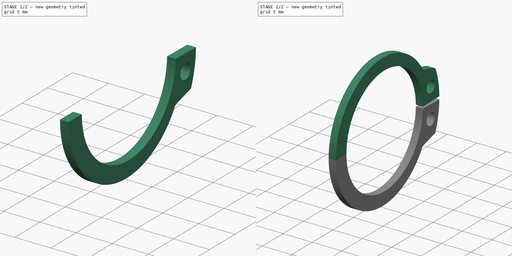
[diagram: build sequence overview — one tinted view per stage of 2, left to right]
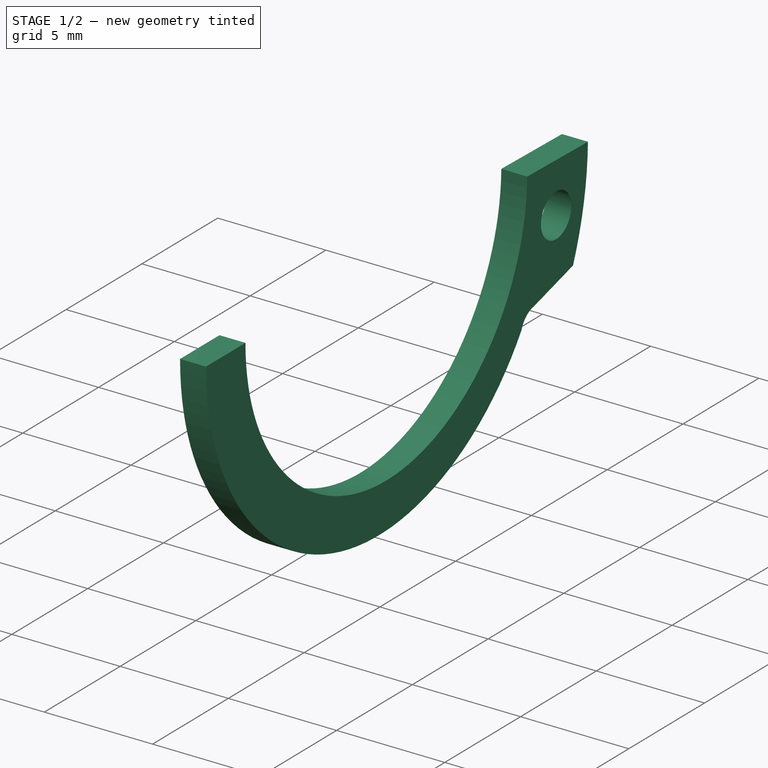
[diagram: stage 1 of 2 — iso view after this stage's code; geometry added in this stage tinted green]
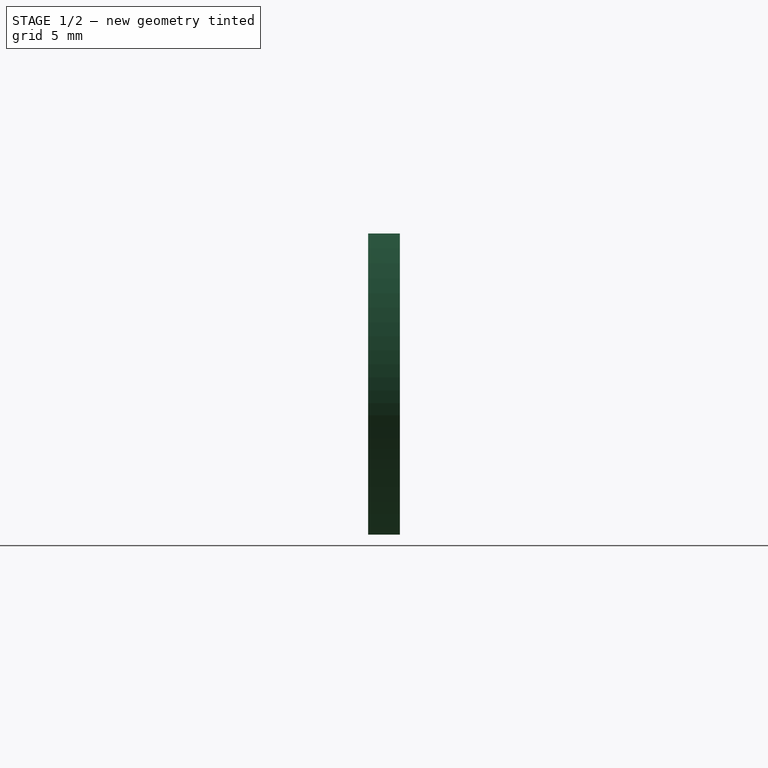
[diagram: stage 1 of 2 — front view after this stage's code; geometry added in this stage tinted green]
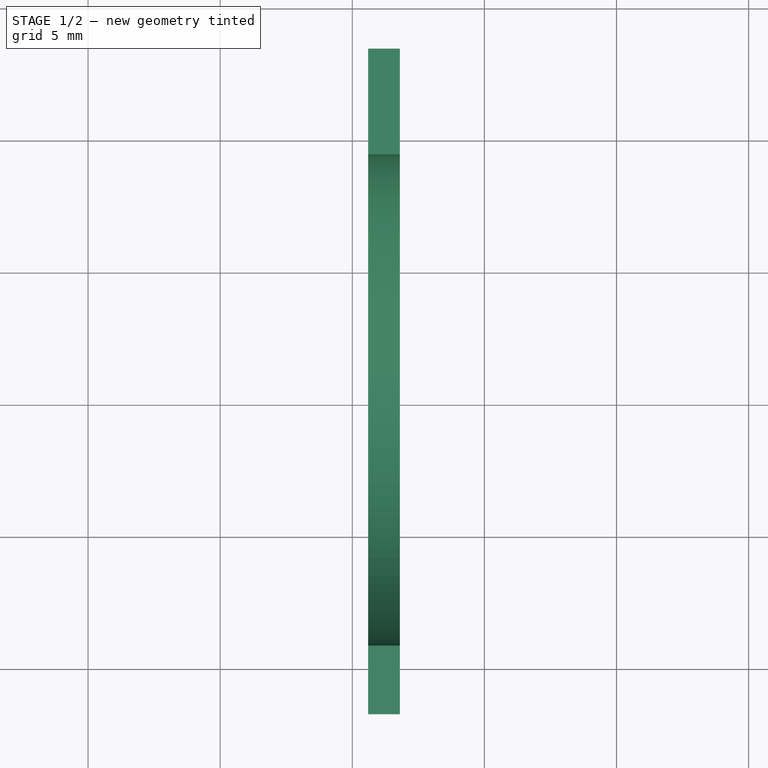
[diagram: stage 1 of 2 — top view after this stage's code; geometry added in this stage tinted green]
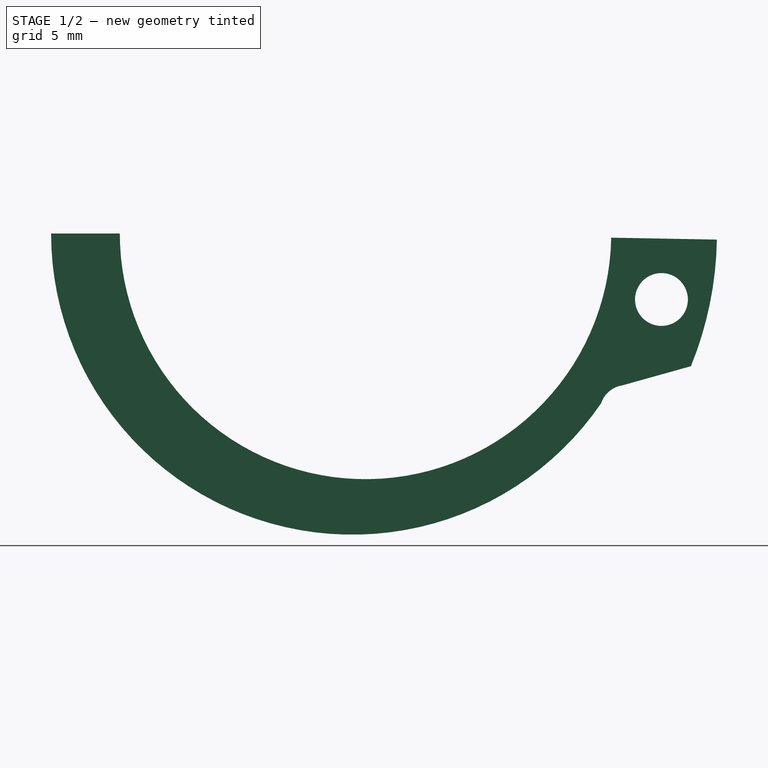
[diagram: stage 1 of 2 — right view after this stage's code; geometry added in this stage tinted green]
FCSTD DOCUMENT  (FreeCAD 0.15R4671 (Git))
Label: DIN471_CLASS_A_M20RetainingRings
License: CreativeCommons Attribution-ShareAlike
LicenseURL: http://creativecommons.org/licenses/by-sa/4.0/
objects: Sketcher::SketchObject×1, PartDesign::Pad×1, PartDesign::Fillet×1, Part::Mirroring×1, Part::MultiFuse×1
note: 6 computed .brp shape members not serialized (recipe doc carries the construction recipe); baked Part::Feature solids carry a one-line shape summary decoded from their .brp

FEATURE [Sketcher::SketchObject] Sketch
  Placement = pos=(0.6,0,0) rot=(0.57735,0.57735,0.57735;2.0944rad)
  sketch-geometry (8):
    g0: Circle CenterX=11.2 CenterY=2.5 CenterZ=0 NormalX=0 NormalY=0 NormalZ=1 Radius=1
    g1: ArcOfCircle CenterX=0 CenterY=0 CenterZ=0 NormalX=0 NormalY=0 NormalZ=1 Radius=9.3 StartAngle=0.0172273 EndAngle=3.14159
    g2: ArcOfCircle CenterX=0 CenterY=0 CenterZ=0 NormalX=0 NormalY=0 NormalZ=1 Radius=13.3007 StartAngle=0.0175375 EndAngle=0.387382
    g3: LineSegment StartX=9.29862 StartY=0.160206 StartZ=0 EndX=13.2986 EndY=0.233248 EndZ=0
    g4: ArcOfCircle CenterX=-0.5 CenterY=0 CenterZ=0 NormalX=0 NormalY=0 NormalZ=1 Radius=11.4 StartAngle=0.598506 EndAngle=3.14159
    g5: LineSegment StartX=-11.9 StartY=0 StartZ=0 EndX=-9.3 EndY=0 EndZ=0
    g6: LineSegment StartX=9.71057 StartY=5.75293 StartZ=0 EndX=12.3151 EndY=5.02453 EndZ=0
    g7: ArcOfCircle CenterX=9.86658 CenterY=6.74069 CenterZ=0 NormalX=0 NormalY=0 NormalZ=1 Radius=1 StartAngle=3.46502 EndAngle=4.55574
  constraints (26):
    c: Radius(g0) = 1
    c: DistanceY(g-1,g0) = 2.5
    c: DistanceX(g-1,g0) = 11.2
    c: Coincident(g1,g-1)
    c: PointOnObject(g1,g-1)
    c: Coincident(g2,g-1)
    c: Radius(g1) = 9.3
    c: Coincident(g3,g1)
    c: Coincident(g3,g2)
    c: DistanceX(g3) = 4
    c: PointOnObject(g4,g-1)
    c: PointOnObject(g4,g-1)
    c: Coincident(g5,g4)
    c: Coincident(g5,g1)
    c: DistanceX(g5) = 2.6
    c: Radius(g4) = 11.4
    c: DistanceX(g-1,g1) = 9.29862
    c: DistanceY(g-1,g2) = 0.233248
    c: DistanceX(g-1,g4) = 8.91843
    c: Coincident(g6,g2)
    c: DistanceY(g-1,g2) = 5.02453
    c: DistanceX(g6) = 2.60453
    c: DistanceY(g-1,g6) = 5.75293
    c: Coincident(g7,g4)
    c: Coincident(g7,g6)
    c: Radius(g7) = 1
FEATURE [PartDesign::Pad] Pad
  Length = 1.2
  Length2 = 100
  Placement = pos=(0.6,0,0) rot=(0.57735,0.57735,0.57735;2.0944rad)
  Sketch = -> Sketch
  Type = 0
FEATURE [Part::Mirroring] Part__Mirroring  label="Pad (Mirror #1)"
  Base = (0,0,0)
  Normal = (0,0,1)
  Source = -> Pad
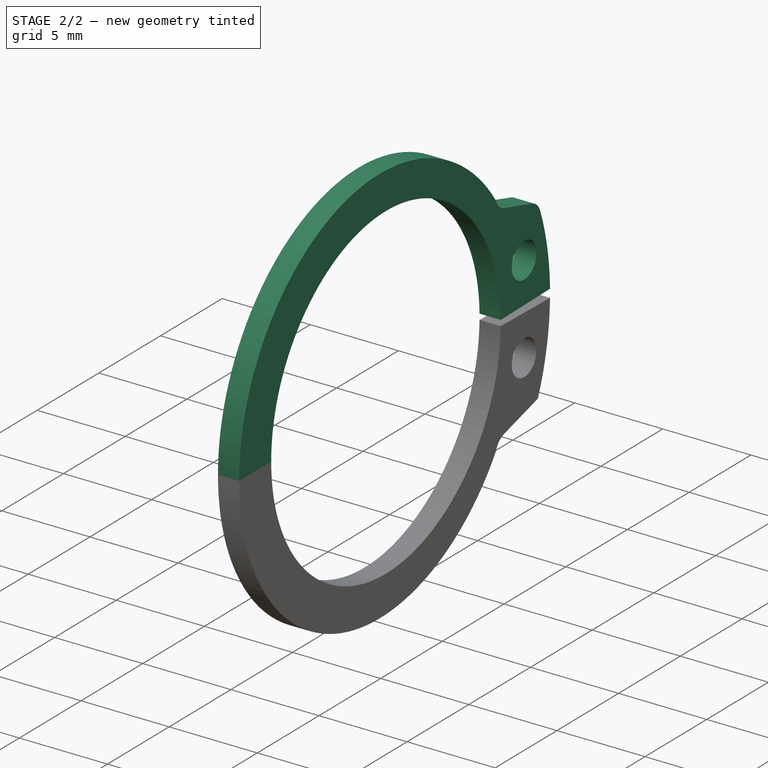
[diagram: stage 2 of 2 — iso view after this stage's code; geometry added in this stage tinted green]
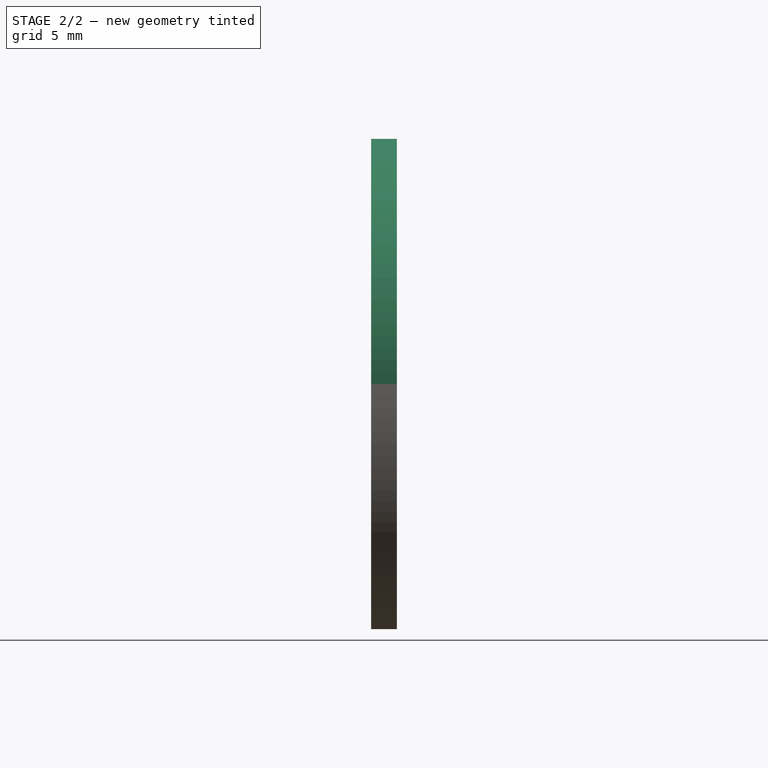
[diagram: stage 2 of 2 — front view after this stage's code; geometry added in this stage tinted green]
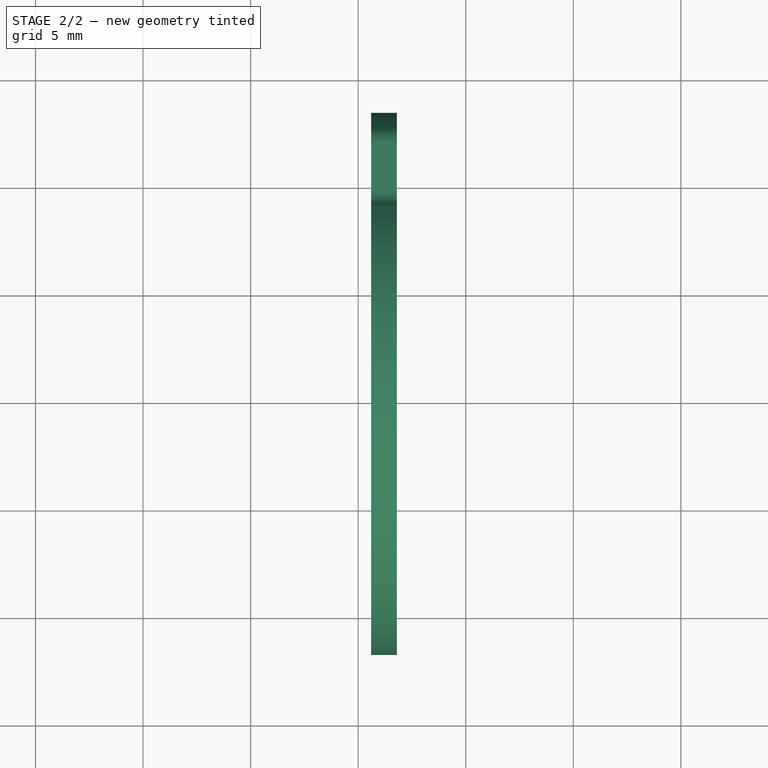
[diagram: stage 2 of 2 — top view after this stage's code; geometry added in this stage tinted green]
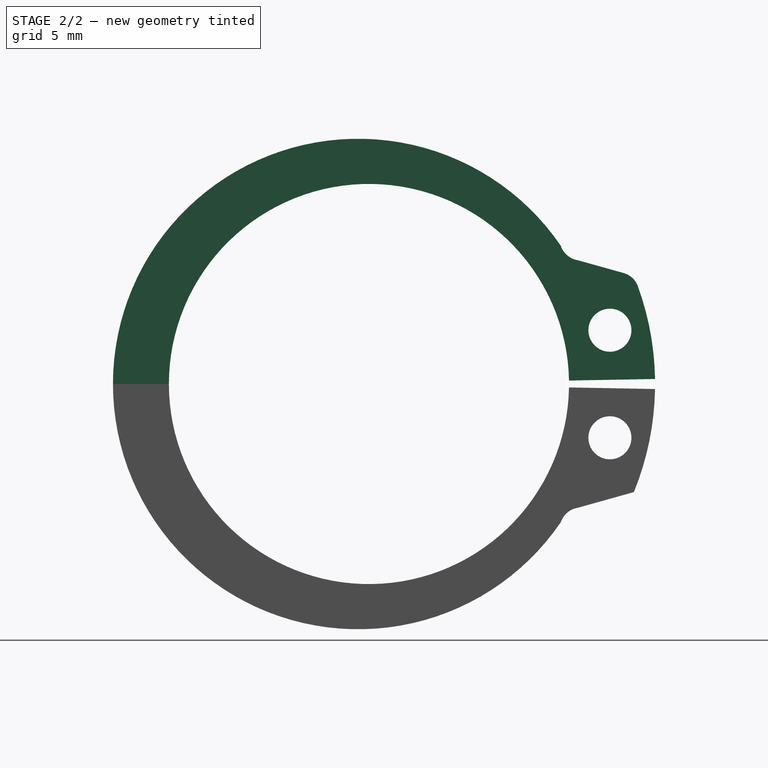
[diagram: stage 2 of 2 — right view after this stage's code; geometry added in this stage tinted green]
FEATURE [PartDesign::Fillet] Fillet
  Base = -> Pad [Edge17]
  Placement = pos=(0.6,0,0) rot=(0.57735,0.57735,0.57735;2.0944rad)
  Radius = 1
FEATURE [Part::MultiFuse] Fusion
  Shapes = -> [Fillet,Part__Mirroring]
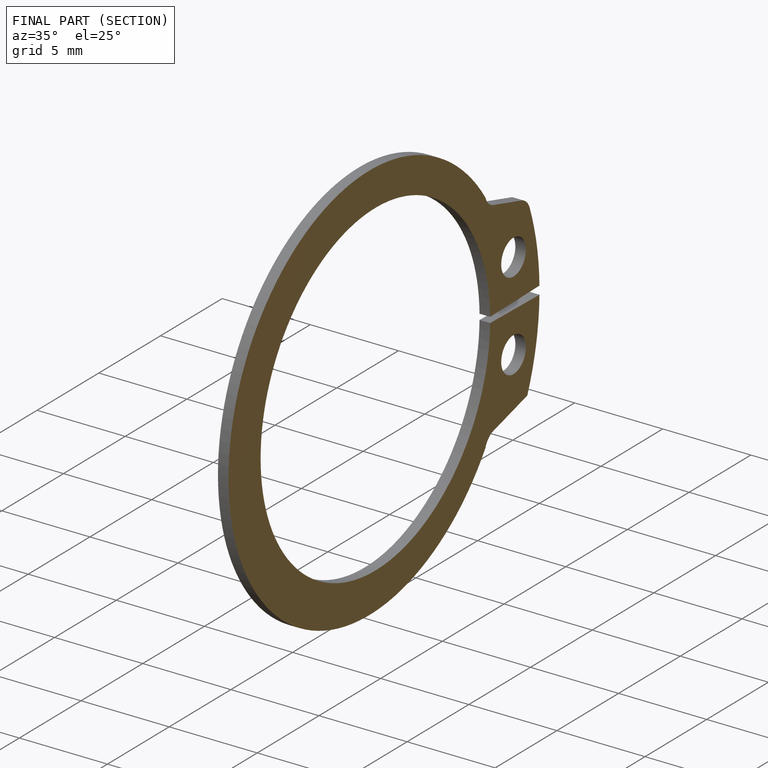
[diagram: finished part — half-section view (interior)]
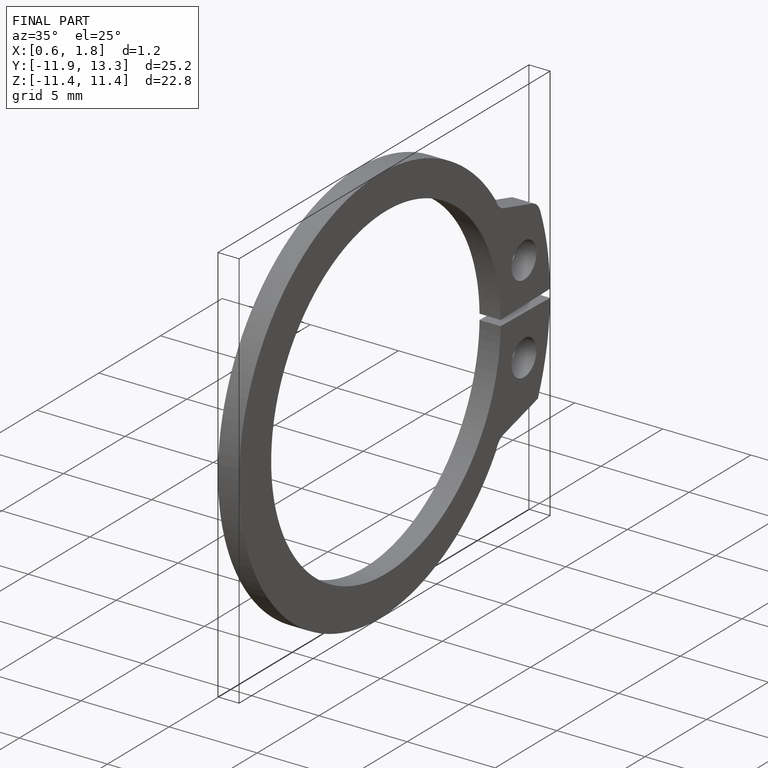
[diagram: finished part — iso view with bounding-box wireframe]
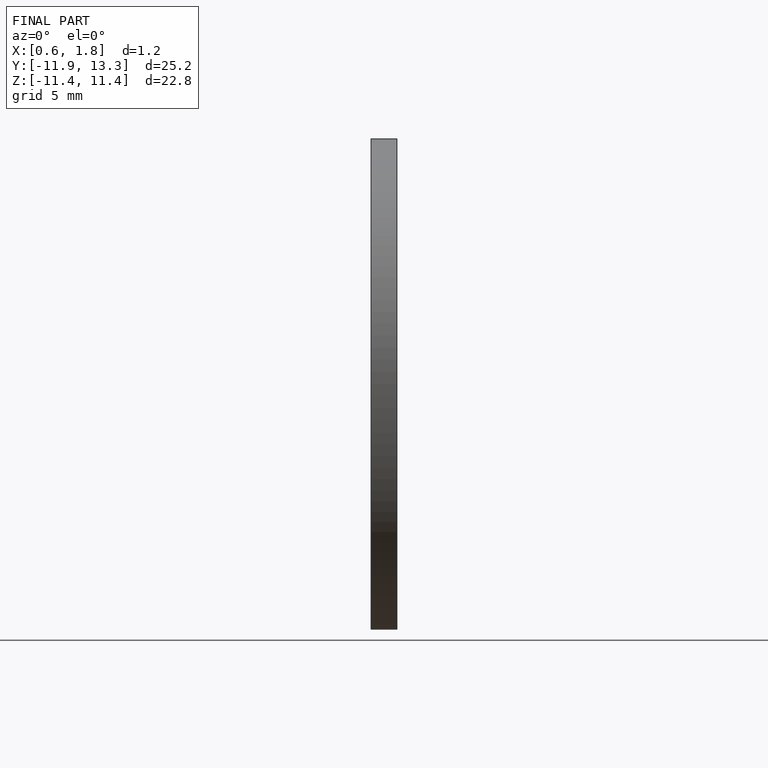
[diagram: finished part — front view with bounding-box wireframe]
